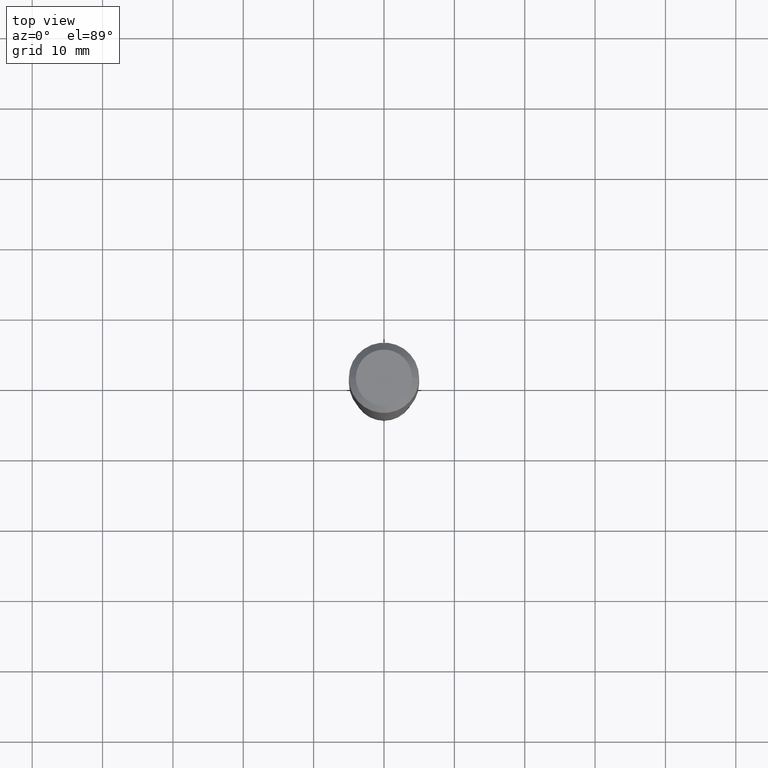
[diagram: clean part render]
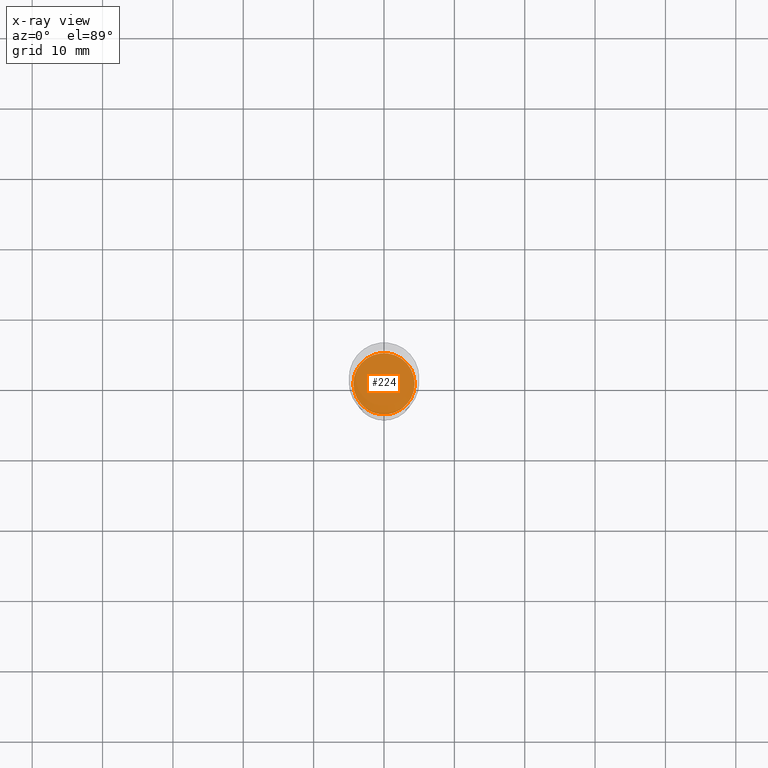
[diagram: x-ray — body ghosted, one internal face saturated and labeled with its STEP entity id]
A machine part, top view, then the same camera in x-ray: the body is ghosted and one INTERNAL B-rep face — a face not visible from any outside direction — is saturated and labeled: STEP entity #224.
In plain terms, the highlighted planar face has unit normal (-0, 0, 1).
Its self-contained STEP definition (entity closure, byte-faithful):
#4 = CARTESIAN_POINT ( 'NONE',  ( 4.883112112190480497E-29, -6.971789937401992754E-15, -1.996799999999999908 ) ) ;
#26 = DIRECTION ( 'NONE',  ( -2.445468806185136597E-29, 3.491481338843145583E-15, 1.000000000000000000 ) ) ;
#66 = DIRECTION ( 'NONE',  ( 1.000000000000000000, -6.982962677686265922E-15, 4.876176775795935793E-29 ) ) ;
#123 = AXIS2_PLACEMENT_3D ( 'NONE', #4, #168, #426 ) ;
#151 = AXIS2_PLACEMENT_3D ( 'NONE', #372, #479, #66 ) ;
#168 = DIRECTION ( 'NONE',  ( -2.445468806185136597E-29, 3.491481338843145583E-15, 1.000000000000000000 ) ) ;
#182 = CARTESIAN_POINT ( 'NONE',  ( 4.883112112190480497E-29, -6.971789937401992754E-15, -1.996799999999999908 ) ) ;
#207 = VERTEX_POINT ( 'NONE', #440 ) ;
#224 = ADVANCED_FACE ( 'NONE', ( #297 ), #259, .F. ) ;
#249 = CIRCLE ( 'NONE', #487, 0.1713999999999999690 ) ;
#252 = EDGE_LOOP ( 'NONE', ( #327, #314 ) ) ;
#256 = EDGE_CURVE ( 'NONE', #207, #300, #249, .T. ) ;
#259 = PLANE ( 'NONE',  #151 ) ;
#297 = FACE_OUTER_BOUND ( 'NONE', #252, .T. ) ;
#300 = VERTEX_POINT ( 'NONE', #473 ) ;
#314 = ORIENTED_EDGE ( 'NONE', *, *, #418, .F. ) ;
#327 = ORIENTED_EDGE ( 'NONE', *, *, #256, .F. ) ;
#335 = DIRECTION ( 'NONE',  ( 1.000000000000000000, -6.982962677686265133E-15, 0.000000000000000000 ) ) ;
#372 = CARTESIAN_POINT ( 'NONE',  ( 2.660723506269796897E-29, -1.015437691158448916E-14, -1.996799999999999908 ) ) ;
#391 = CIRCLE ( 'NONE', #123, 0.1713999999999999690 ) ;
#418 = EDGE_CURVE ( 'NONE', #300, #207, #391, .T. ) ;
#426 = DIRECTION ( 'NONE',  ( 1.000000000000000000, -6.982962677686265133E-15, 0.000000000000000000 ) ) ;
#440 = CARTESIAN_POINT ( 'NONE',  ( 0.1713999999999999690, -8.168669740357418199E-15, -1.996799999999999908 ) ) ;
#473 = CARTESIAN_POINT ( 'NONE',  ( -0.1713999999999999690, -5.751270461135069068E-15, -1.996799999999999908 ) ) ;
#479 = DIRECTION ( 'NONE',  ( -2.438088387897960049E-29, 3.491481338843145188E-15, 1.000000000000000000 ) ) ;
#487 = AXIS2_PLACEMENT_3D ( 'NONE', #182, #26, #335 ) ;